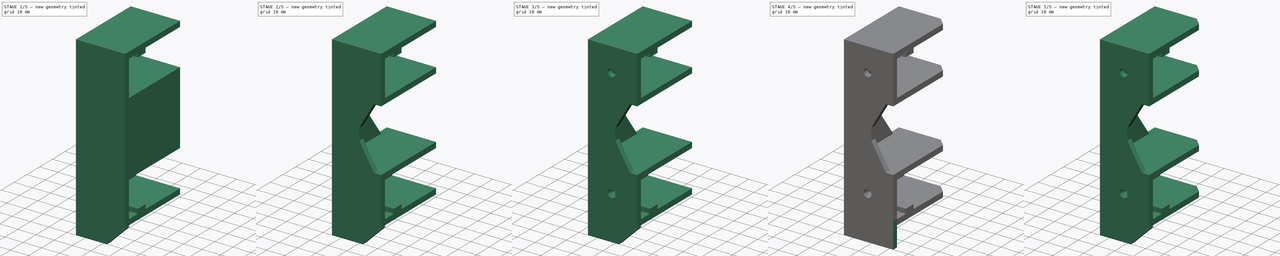
[diagram: build sequence overview — one tinted view per stage of 5, left to right]
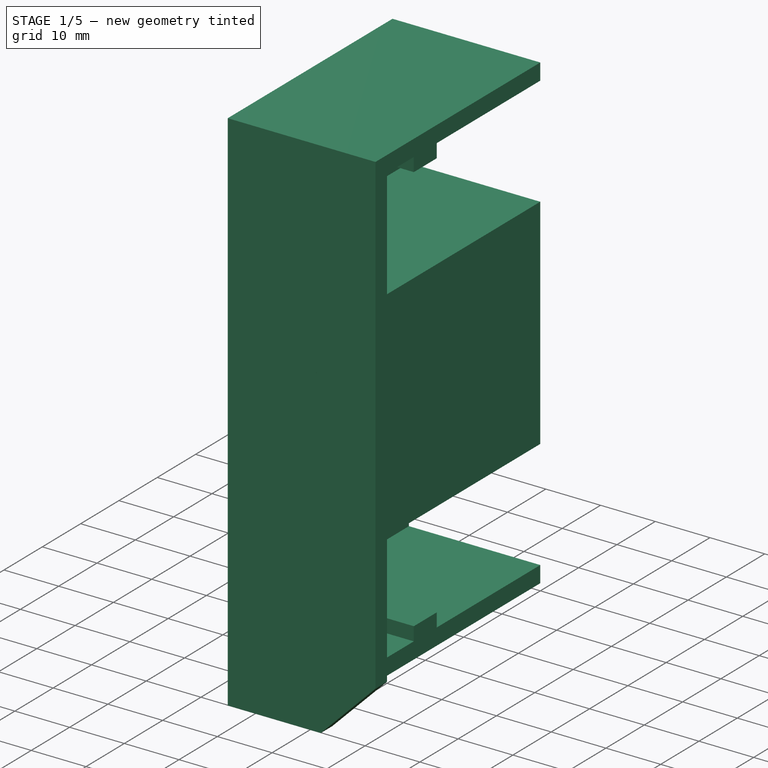
[diagram: stage 1 of 5 — iso view after this stage's code; geometry added in this stage tinted green]
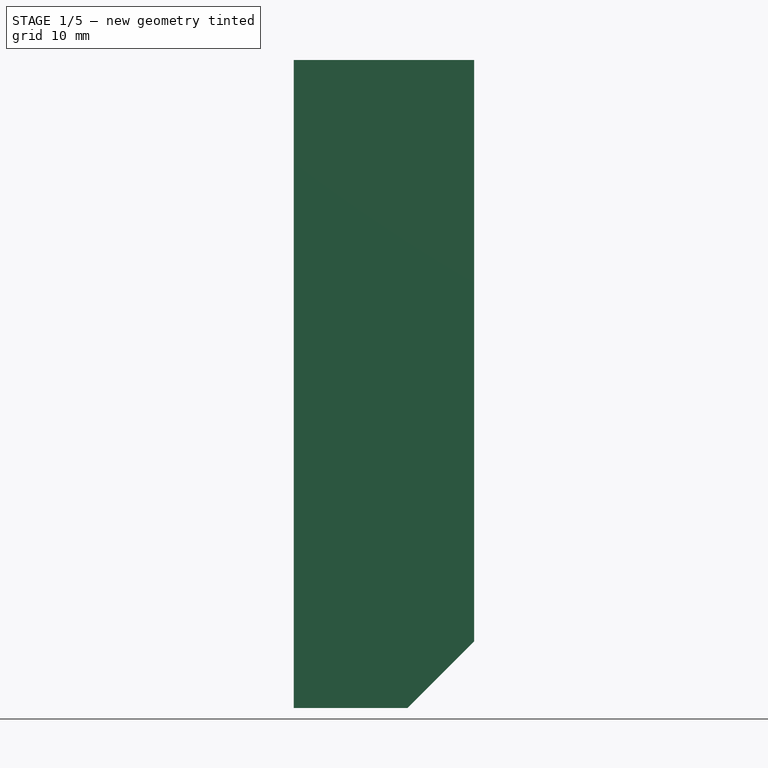
[diagram: stage 1 of 5 — front view after this stage's code; geometry added in this stage tinted green]
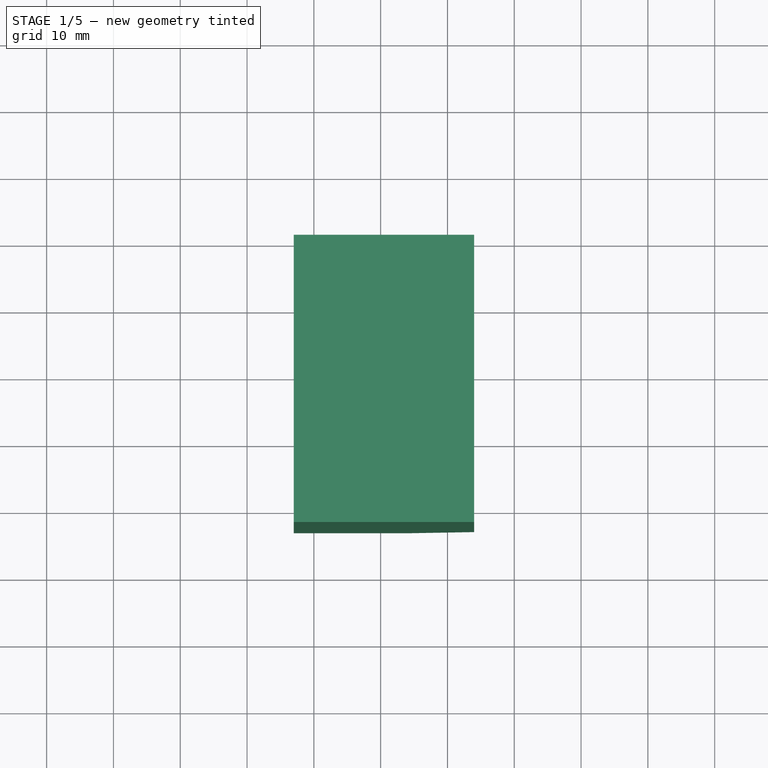
[diagram: stage 1 of 5 — top view after this stage's code; geometry added in this stage tinted green]
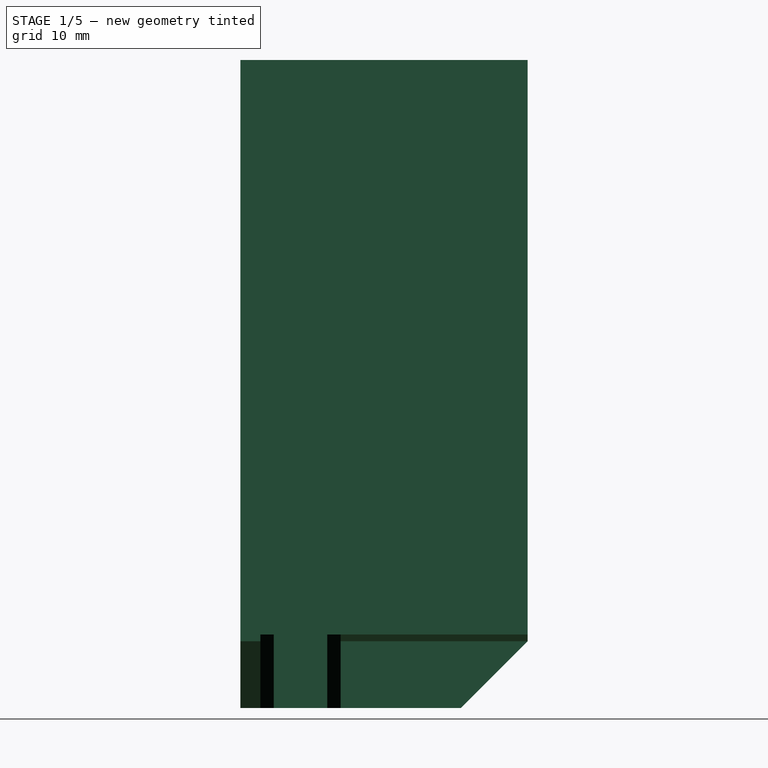
[diagram: stage 1 of 5 — right view after this stage's code; geometry added in this stage tinted green]
FCSTD DOCUMENT  (FreeCAD 0.14R3692 (Git))
Label: foot-rear-left
License: CC-BY 3.0
LicenseURL: http://creativecommons.org/licenses/by/3.0/
objects: Sketcher::SketchObject×9, Part::Feature×6, PartDesign::Pocket×5, Part::Chamfer×5, PartDesign::Pad×4, Part::Box×2, Part::Thickness×1, Part::MultiFuse×1, App::DocumentObjectGroup×1
note: 42 computed .brp shape members not serialized (recipe doc carries the construction recipe); baked Part::Feature solids carry a one-line shape summary decoded from their .brp

FEATURE [Part::Box] Box  label="body-cube"
  Height = 80
  Length = 24
  Width = 40
FEATURE [Part::Thickness] Thickness  label="body-thickness"
  Faces = -> Box [Face2,Face4]
  Intersection = false
  Join = 2
  Mode = 0
  SelfIntersection = false
  Value = 3
FEATURE [Sketcher::SketchObject] Sketch  label="body-sketch"
  Placement = pos=(0,0,0) rot=(0.57735,0.57735,0.57735;2.0944rad)
  Support = -> Thickness [Face1]
  sketch-geometry (4):
    g0: LineSegment StartX=40 StartY=60 StartZ=0 EndX=0 EndY=60 EndZ=0
    g1: LineSegment StartX=0 StartY=60 StartZ=0 EndX=0 EndY=20 EndZ=0
    g2: LineSegment StartX=0 StartY=20 StartZ=0 EndX=40 EndY=20 EndZ=0
    g3: LineSegment StartX=40 StartY=20 StartZ=0 EndX=40 EndY=60 EndZ=0
  constraints (12):
    c: Coincident(g0,g1)
    c: Coincident(g1,g2)
    c: Coincident(g2,g3)
    c: Coincident(g3,g0)
    c: Horizontal(g0)
    c: Horizontal(g2)
    c: Vertical(g1)
    c: Vertical(g3)
    c: PointOnObject(g1,g-2)
    c: DistanceX(g2) = 40
    c: DistanceY(g1) = -40
    c: DistanceY(g-1,g1) = 20
FEATURE [PartDesign::Pad] Pad  label="body-pad"
  Length = 24
  Length2 = 100
  Sketch = -> Sketch
  Type = 0
FEATURE [Part::Feature] Fusion001  label="body-foot-fusion-refined"
  shape: bbox 27 x 43 x 97 mm, 55 faces (baked)
FEATURE [Part::Chamfer] Chamfer004  label="body-foot-chamfer"
  Base = -> Fusion001
  Edges = 1 edges: [Edge16 r1=1 r2=4]
FEATURE [Part::Feature] Chamfer004001  label="foot-rear-left"
  shape: bbox 27 x 43 x 97 mm, 56 faces (baked)
FEATURE [Part::Feature] Part__Feature  label="extrusion-p20n6b-300-bottom-left"
  Placement = pos=(10,20,10) rot=(-1,0,0;1.5708rad)
  shape: bbox 20 x 300 x 20 mm, 154 faces (baked)
FEATURE [Part::Feature] Part__Feature001  label="extrusion-p20n6b-300-top-left"
  Placement = pos=(10,20,70) rot=(-1,0,0;1.5708rad)
  shape: bbox 20 x 300 x 20 mm, 154 faces (baked)
FEATURE [Part::Feature] Part__Feature002  label="extrusion-p20n6b-200-bottom-rear"
  Placement = pos=(0,10,10) rot=(0,1,0;1.5708rad)
  shape: bbox 200 x 20 x 20 mm, 154 faces (baked)
FEATURE [Part::Feature] Part__Feature003  label="extrusion-p20n6b-200-top-rear"
  Placement = pos=(0,10,70) rot=(0,1,0;1.5708rad)
  shape: bbox 200 x 20 x 20 mm, 154 faces (baked)
FEATURE [App::DocumentObjectGroup] Grupo  label="aux"
  Group = -> [Part__Feature,Part__Feature001,Part__Feature002,Part__Feature003]
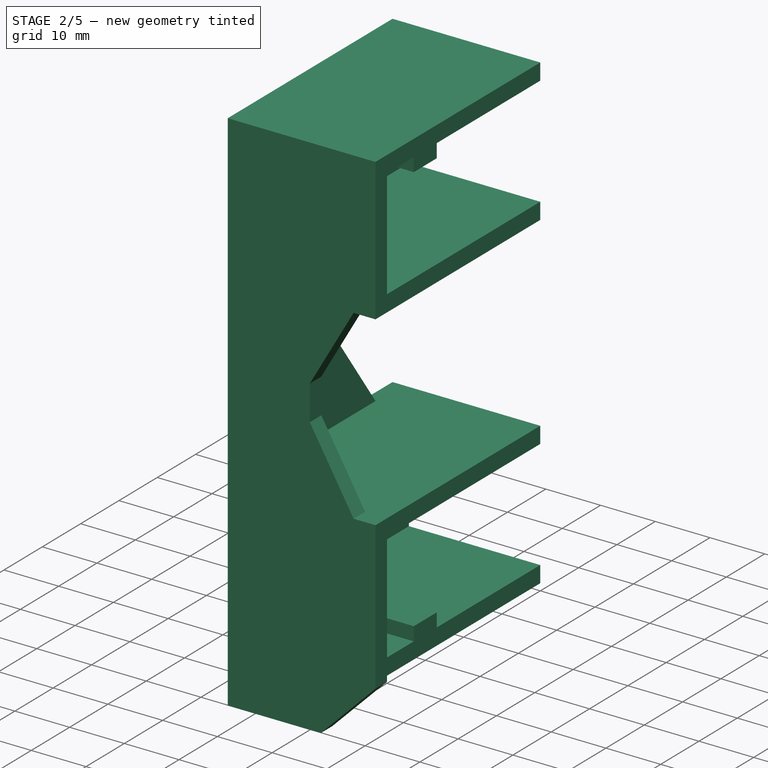
[diagram: stage 2 of 5 — iso view after this stage's code; geometry added in this stage tinted green]
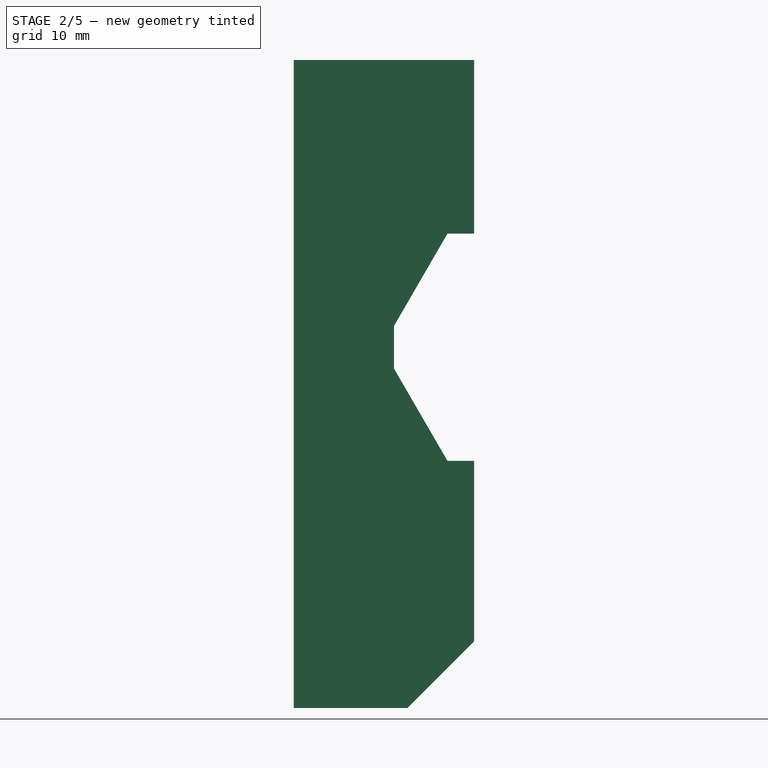
[diagram: stage 2 of 5 — front view after this stage's code; geometry added in this stage tinted green]
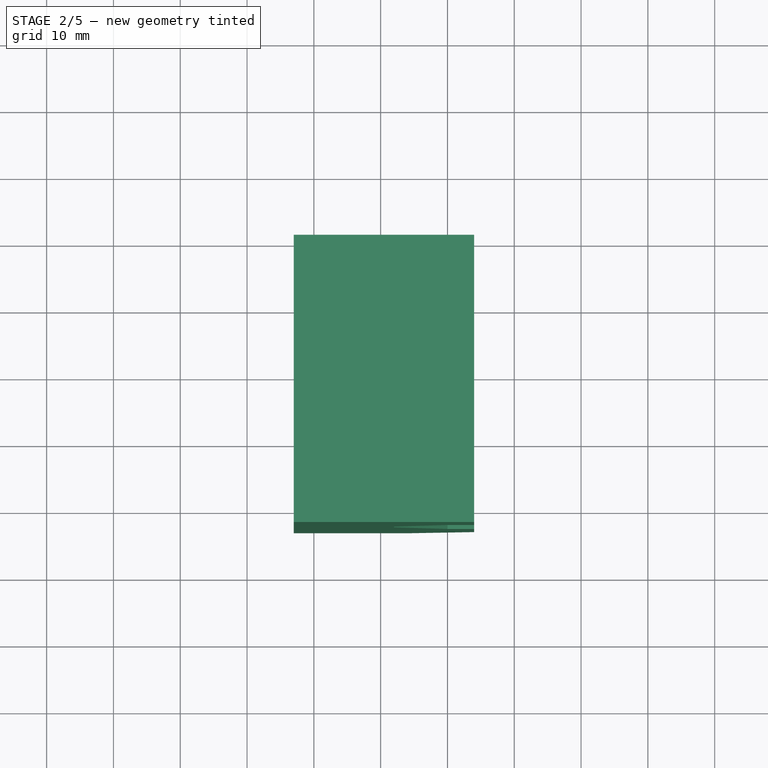
[diagram: stage 2 of 5 — top view after this stage's code; geometry added in this stage tinted green]
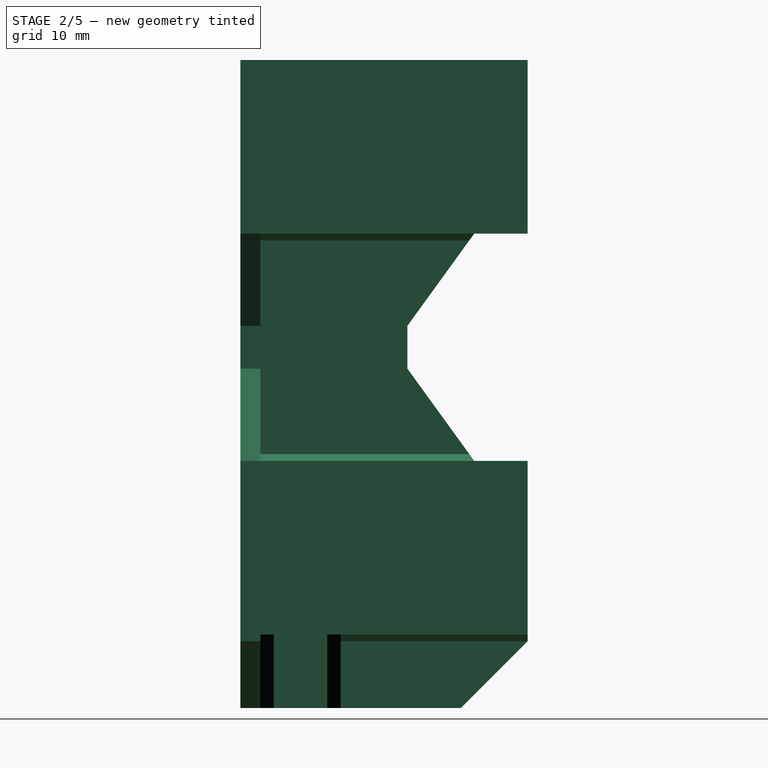
[diagram: stage 2 of 5 — right view after this stage's code; geometry added in this stage tinted green]
FEATURE [Sketcher::SketchObject] Sketch001  label="body-recess-sketch"
  Placement = pos=(24,0,0) rot=(0.57735,0.57735,0.57735;2.0944rad)
  Support = -> Pad [Face15]
  sketch-geometry (4):
    g0: LineSegment StartX=40 StartY=57 StartZ=0 EndX=0 EndY=57 EndZ=0
    g1: LineSegment StartX=0 StartY=57 StartZ=0 EndX=0 EndY=23 EndZ=0
    g2: LineSegment StartX=0 StartY=23 StartZ=0 EndX=40 EndY=23 EndZ=0
    g3: LineSegment StartX=40 StartY=23 StartZ=0 EndX=40 EndY=57 EndZ=0
  constraints (12):
    c: Coincident(g0,g1)
    c: Coincident(g1,g2)
    c: Coincident(g2,g3)
    c: Coincident(g3,g0)
    c: Horizontal(g0)
    c: Horizontal(g2)
    c: Vertical(g1)
    c: Vertical(g3)
    c: DistanceX(g2) = 40
    c: DistanceY(g1) = -34
    c: DistanceY(g-1,g1) = 23
    c: PointOnObject(g1,g-2)
FEATURE [PartDesign::Pocket] Pocket  label="body-recess-pocket"
  Length = 24
  Sketch = -> Sketch001
  Type = 0
FEATURE [Sketcher::SketchObject] Sketch005  label="body-rear-cutout-sketch"
  Placement = pos=(0,-3,0) rot=(1,0,0;1.5708rad)
  Support = -> Pocket [Face15]
  sketch-geometry (6):
    g0: LineSegment StartX=24 StartY=57 StartZ=0 EndX=20 EndY=57 EndZ=0
    g1: LineSegment StartX=20 StartY=57 StartZ=0 EndX=12 EndY=43.2 EndZ=0
    g2: LineSegment StartX=12 StartY=43.2 StartZ=0 EndX=12 EndY=36.8 EndZ=0
    g3: LineSegment StartX=12 StartY=36.8 StartZ=0 EndX=20 EndY=23 EndZ=0
    g4: LineSegment StartX=20 StartY=23 StartZ=0 EndX=24 EndY=23 EndZ=0
    g5: LineSegment StartX=24 StartY=23 StartZ=0 EndX=24 EndY=57 EndZ=0
  constraints (18):
    c: Coincident(g0,g1)
    c: Coincident(g1,g2)
    c: Coincident(g2,g3)
    c: Coincident(g3,g4)
    c: Coincident(g4,g5)
    c: Coincident(g5,g0)
    c: Vertical(g5)
    c: Vertical(g2)
    c: Horizontal(g0)
    c: Horizontal(g4)
    c: DistanceY(g2) = -6.4
    c: DistanceY(g-1,g4) = 23
    c: DistanceX(g-1,g4) = 24
    c: DistanceY(g5) = 34
    c: DistanceX(g4) = 4
    c: DistanceX(g0) = -4
    c: Equal(g1,g3)
    c: DistanceX(g-1,g2) = 12
FEATURE [PartDesign::Pocket] Pocket001  label="body-rear-cutout-pocket"
  Length = 3
  Sketch = -> Sketch005
  Type = 0
FEATURE [Sketcher::SketchObject] Sketch006  label="body-left-cutout-sketch"
  Placement = pos=(-3,0,0) rot=(0.57735,-0.57735,-0.57735;2.0944rad)
  Support = -> Pocket001 [Face12]
  sketch-geometry (6):
    g0: LineSegment StartX=-40 StartY=57 StartZ=0 EndX=-32 EndY=57 EndZ=0
    g1: LineSegment StartX=-32 StartY=57 StartZ=0 EndX=-22 EndY=43.2 EndZ=0
    g2: LineSegment StartX=-22 StartY=43.2 StartZ=0 EndX=-22 EndY=36.8 EndZ=0
    g3: LineSegment StartX=-22 StartY=36.8 StartZ=0 EndX=-32 EndY=23 EndZ=0
    g4: LineSegment StartX=-32 StartY=23 StartZ=0 EndX=-40 EndY=23 EndZ=0
    g5: LineSegment StartX=-40 StartY=23 StartZ=0 EndX=-40 EndY=57 EndZ=0
  constraints (18):
    c: Coincident(g0,g1)
    c: Coincident(g1,g2)
    c: Coincident(g2,g3)
    c: Coincident(g3,g4)
    c: Coincident(g4,g5)
    c: Coincident(g5,g0)
    c: Horizontal(g0)
    c: Horizontal(g4)
    c: Vertical(g2)
    c: Vertical(g5)
    c: DistanceX(g-1,g4) = -40
    c: DistanceY(g5) = 34
    c: DistanceX(g-1,g2) = -22
    c: Equal(g3,g1)
    c: DistanceY(g2) = -6.4
    c: DistanceY(g-1,g4) = 23
    c: DistanceX(g4) = -8
    c: DistanceX(g0) = 8
FEATURE [PartDesign::Pocket] Pocket002  label="body-left-cutout-pocket"
  Length = 3
  Sketch = -> Sketch006
  Type = 0
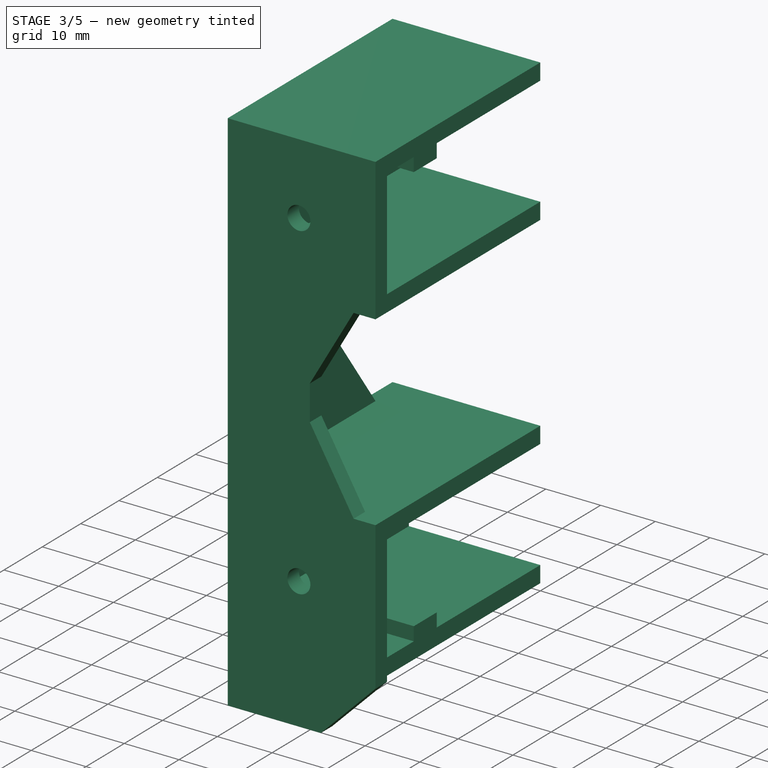
[diagram: stage 3 of 5 — iso view after this stage's code; geometry added in this stage tinted green]
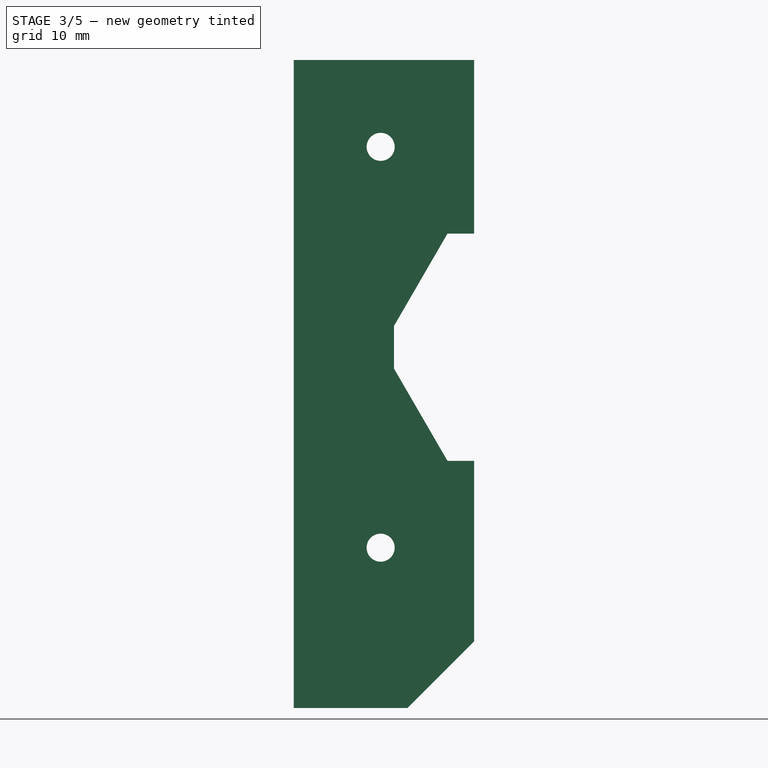
[diagram: stage 3 of 5 — front view after this stage's code; geometry added in this stage tinted green]
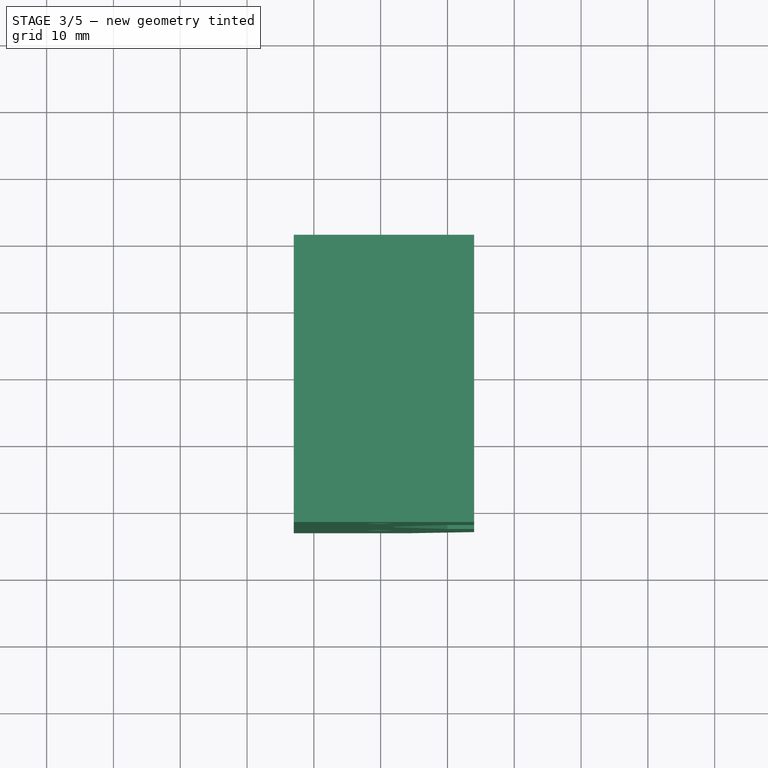
[diagram: stage 3 of 5 — top view after this stage's code; geometry added in this stage tinted green]
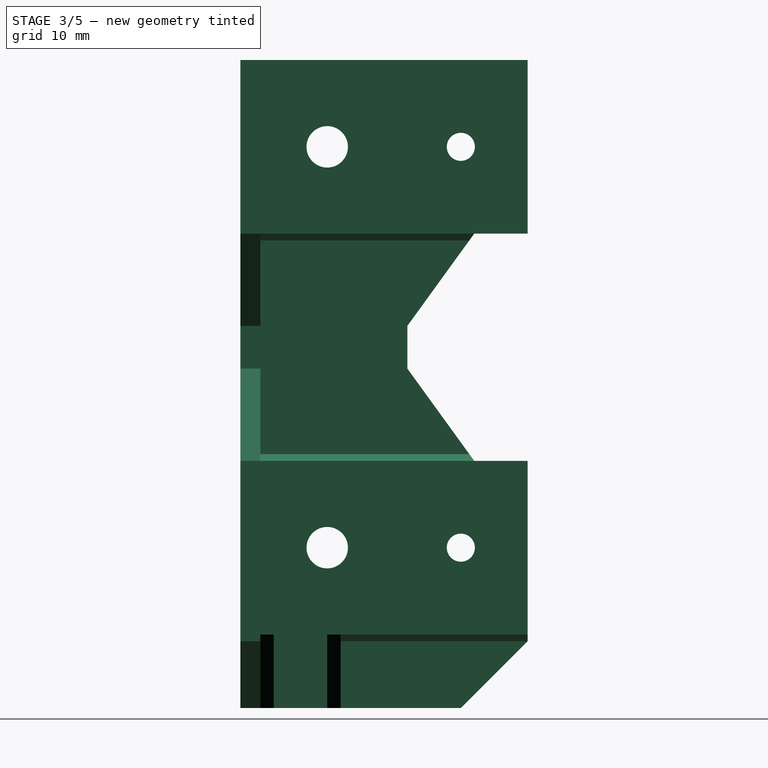
[diagram: stage 3 of 5 — right view after this stage's code; geometry added in this stage tinted green]
FEATURE [Sketcher::SketchObject] Sketch004  label="slot-rear-guides-sketch"
  Placement = pos=(0,0,0) rot=(0.57735,0.57735,0.57735;2.0944rad)
  Support = -> Pocket002 [Face2]
  sketch-geometry (8):
    g0: LineSegment StartX=7 StartY=2.5 StartZ=0 EndX=13 EndY=2.5 EndZ=0
    g1: LineSegment StartX=13 StartY=2.5 StartZ=0 EndX=13 EndY=0 EndZ=0
    g2: LineSegment StartX=13 StartY=0 StartZ=0 EndX=7 EndY=0 EndZ=0
    g3: LineSegment StartX=7 StartY=0 StartZ=0 EndX=7 EndY=2.5 EndZ=0
    g4: LineSegment StartX=7 StartY=80 StartZ=0 EndX=13 EndY=80 EndZ=0
    g5: LineSegment StartX=13 StartY=80 StartZ=0 EndX=13 EndY=77.5 EndZ=0
    g6: LineSegment StartX=13 StartY=77.5 StartZ=0 EndX=7 EndY=77.5 EndZ=0
    g7: LineSegment StartX=7 StartY=77.5 StartZ=0 EndX=7 EndY=80 EndZ=0
  constraints (24):
    c: Coincident(g0,g1)
    c: Coincident(g1,g2)
    c: Coincident(g2,g3)
    c: Coincident(g3,g0)
    c: Horizontal(g0)
    c: Horizontal(g2)
    c: Vertical(g1)
    c: Vertical(g3)
    c: Coincident(g4,g5)
    c: Coincident(g5,g6)
    c: Coincident(g6,g7)
    c: Coincident(g7,g4)
    c: Horizontal(g4)
    c: Horizontal(g6)
    c: Vertical(g5)
    c: Vertical(g7)
    c: DistanceX(g0) = 6
    c: DistanceY(g1) = -2.5
    c: DistanceX(g6) = -6
    c: DistanceY(g5) = -2.5
    c: PointOnObject(g2,g-1)
    c: DistanceX(g-1,g2) = 7
    c: DistanceX(g-1,g4) = 7
    c: DistanceY(g-1,g4) = 80
FEATURE [PartDesign::Pad] Pad003  label="slot-rear-guides-pad"
  Length = 24
  Length2 = 100
  Sketch = -> Sketch004
  Type = 0
FEATURE [Sketcher::SketchObject] Sketch007  label="slot-rear-screw-holes-sketch"
  Placement = pos=(0,-3,0) rot=(1,0,0;1.5708rad)
  Support = -> Pad003 [Face15]
  sketch-geometry (2):
    g0: Circle CenterX=10 CenterY=10 CenterZ=0 NormalX=0 NormalY=0 NormalZ=1 Radius=2.1
    g1: Circle CenterX=10 CenterY=70 CenterZ=0 NormalX=0 NormalY=0 NormalZ=1 Radius=2.1
  constraints (6):
    c: Radius(g0) = 2.1
    c: Equal(g0,g1)
    c: DistanceX(g-1,g0) = 10
    c: DistanceY(g-1,g0) = 10
    c: DistanceX(g-1,g1) = 10
    c: DistanceY(g-1,g1) = 70
FEATURE [PartDesign::Pocket] Pocket003  label="slot-rear-screw-holes-pocket"
  Length = 3
  Sketch = -> Sketch007
  Type = 0
FEATURE [Sketcher::SketchObject] Sketch008  label="slot-left-screw-holes-sketch"
  Placement = pos=(-3,0,0) rot=(0.57735,-0.57735,-0.57735;2.0944rad)
  Support = -> Pocket003 [Face3]
  sketch-geometry (4):
    g0: Circle CenterX=-30 CenterY=10 CenterZ=0 NormalX=0 NormalY=0 NormalZ=1 Radius=2.1
    g1: Circle CenterX=-30 CenterY=70 CenterZ=0 NormalX=0 NormalY=0 NormalZ=1 Radius=2.1
    g2: Circle CenterX=-10 CenterY=10 CenterZ=0 NormalX=0 NormalY=0 NormalZ=1 Radius=3.1
    g3: Circle CenterX=-10 CenterY=70 CenterZ=0 NormalX=0 NormalY=0 NormalZ=1 Radius=3.1
  constraints (12):
    c: Radius(g0) = 2.1
    c: Equal(g0,g1)
    c: DistanceY(g-1,g0) = 10
    c: DistanceX(g-1,g0) = -30
    c: DistanceY(g-1,g1) = 70
    c: DistanceX(g-1,g1) = -30
    c: Radius(g2) = 3.1
    c: Equal(g2,g3)
    c: DistanceY(g-1,g2) = 10
    c: DistanceX(g-1,g2) = -10
    c: DistanceY(g-1,g3) = 70
    c: DistanceX(g-1,g3) = -10
FEATURE [PartDesign::Pocket] Pocket004  label="slot-left-screw-holes-pocket"
  Length = 3
  Sketch = -> Sketch008
  Type = 0
FEATURE [Part::Chamfer] Chamfer002  label="body-recess-reinforced-chamfer"
  Base = -> Pocket004
  Edges = 2 edges: [Edge50 r1=4 r2=1,Edge89 r1=1 r2=4]
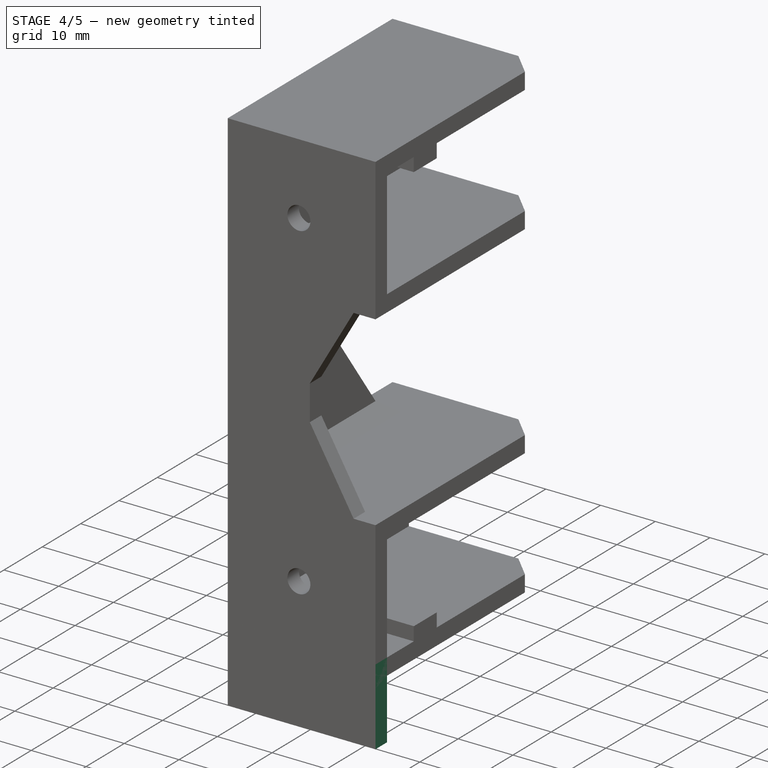
[diagram: stage 4 of 5 — iso view after this stage's code; geometry added in this stage tinted green]
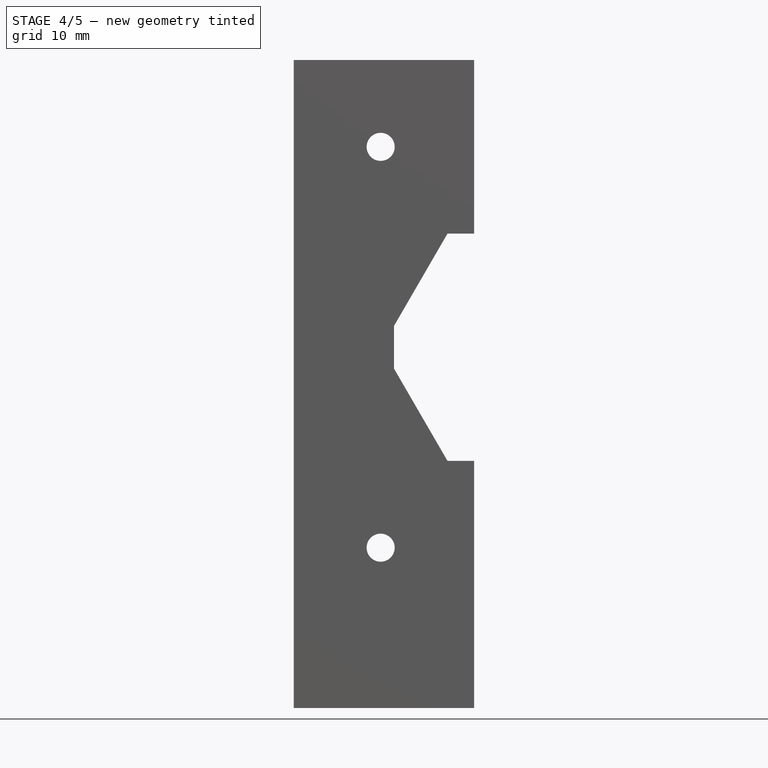
[diagram: stage 4 of 5 — front view after this stage's code; geometry added in this stage tinted green]
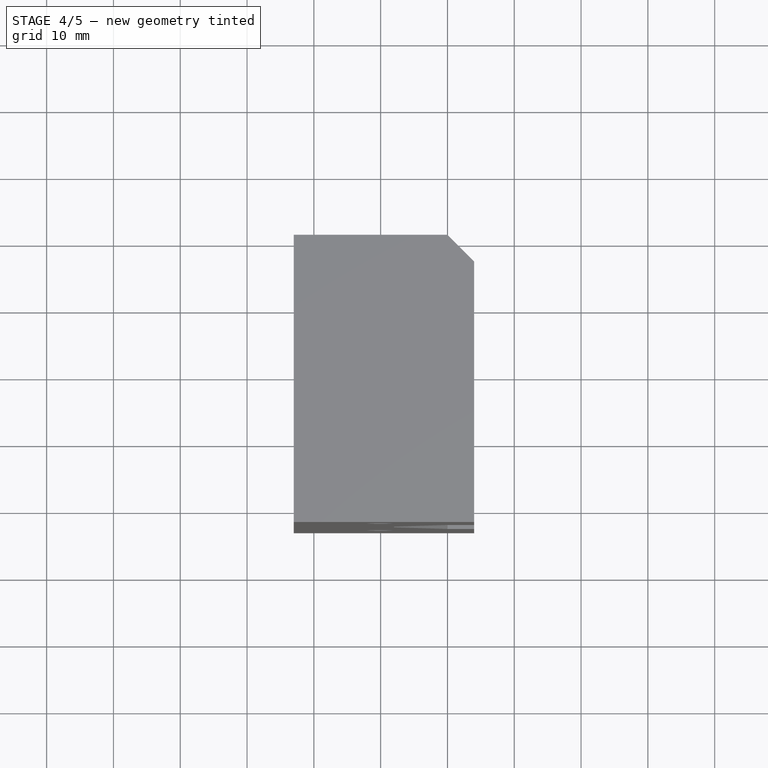
[diagram: stage 4 of 5 — top view after this stage's code; geometry added in this stage tinted green]
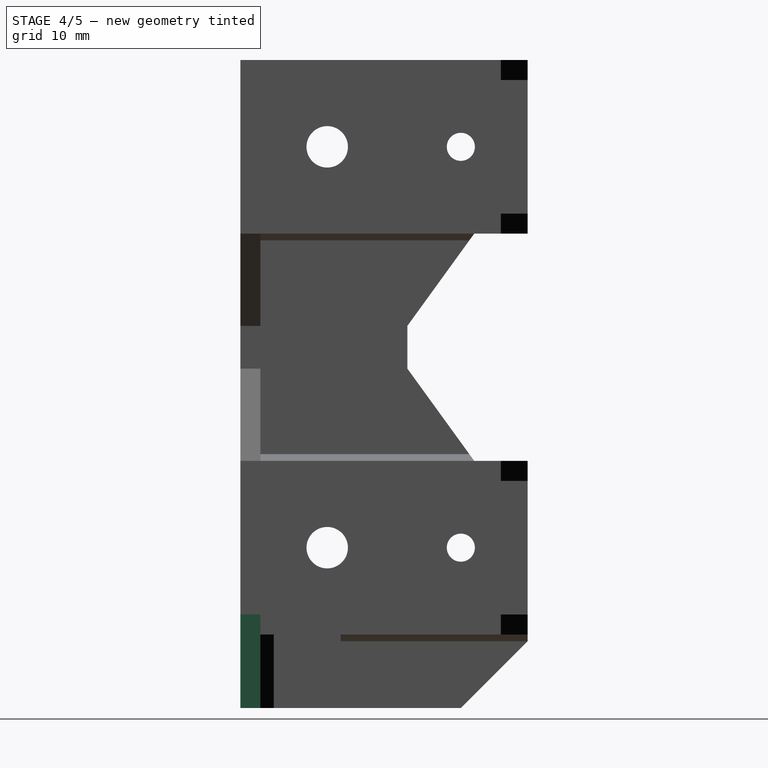
[diagram: stage 4 of 5 — right view after this stage's code; geometry added in this stage tinted green]
FEATURE [Part::Box] Box001  label="foot-cube"
  Height = 14
  Length = 15
  Placement = pos=(-3,-3,-14) rot=(0,0,1;0rad)
  Width = 15
FEATURE [Sketcher::SketchObject] Sketch002  label="foot-rear-fin-sketch"
  Placement = pos=(12,-3,-14) rot=(0.57735,0.57735,0.57735;2.0944rad)
  Support = -> Box001 [Face2]
  sketch-geometry (4):
    g0: LineSegment StartX=0 StartY=14 StartZ=0 EndX=3 EndY=14 EndZ=0
    g1: LineSegment StartX=3 StartY=14 StartZ=0 EndX=3 EndY=0 EndZ=0
    g2: LineSegment StartX=3 StartY=0 StartZ=0 EndX=0 EndY=0 EndZ=0
    g3: LineSegment StartX=0 StartY=0 StartZ=0 EndX=0 EndY=14 EndZ=0
  constraints (11):
    c: Coincident(g0,g1)
    c: Coincident(g1,g2)
    c: Coincident(g2,g3)
    c: Coincident(g3,g0)
    c: Horizontal(g0)
    c: Horizontal(g2)
    c: Vertical(g1)
    c: Vertical(g3)
    c: Coincident(g2,g-1)
    c: DistanceX(g2) = -3
    c: DistanceY(g3) = 14
FEATURE [PartDesign::Pad] Pad001  label="foot-rear-fin-pad"
  Length = 12
  Length2 = 100
  Placement = pos=(-3,-3,-14) rot=(0,0,1;0rad)
  Sketch = -> Sketch002
  Type = 0
FEATURE [Part::Chamfer] Chamfer003  label="slot-left-chamfer"
  Base = -> Chamfer002
  Edges = 4 edges r=4: [Edge47,Edge51,Edge71,Edge101]
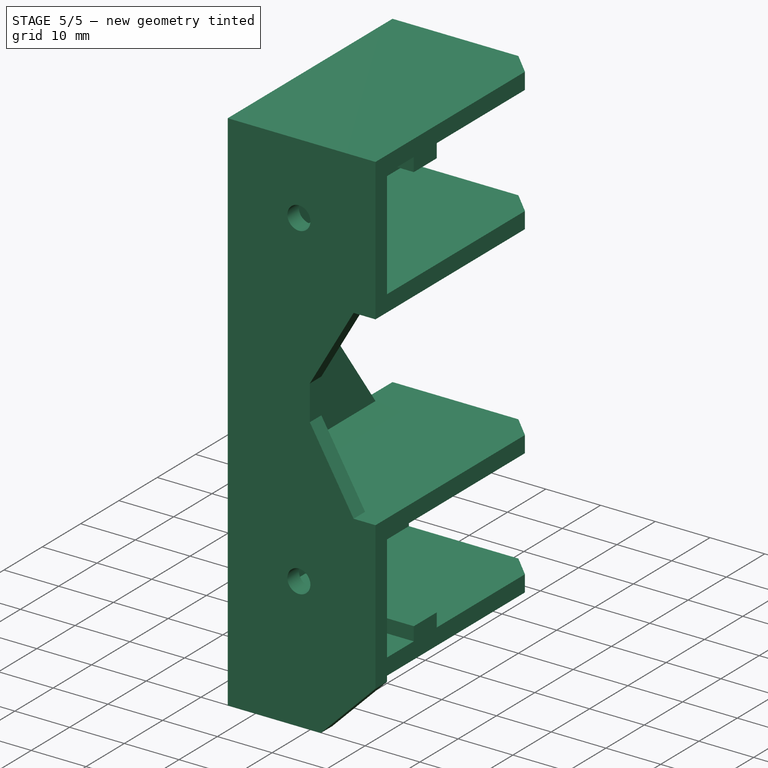
[diagram: stage 5 of 5 — iso view after this stage's code; geometry added in this stage tinted green]
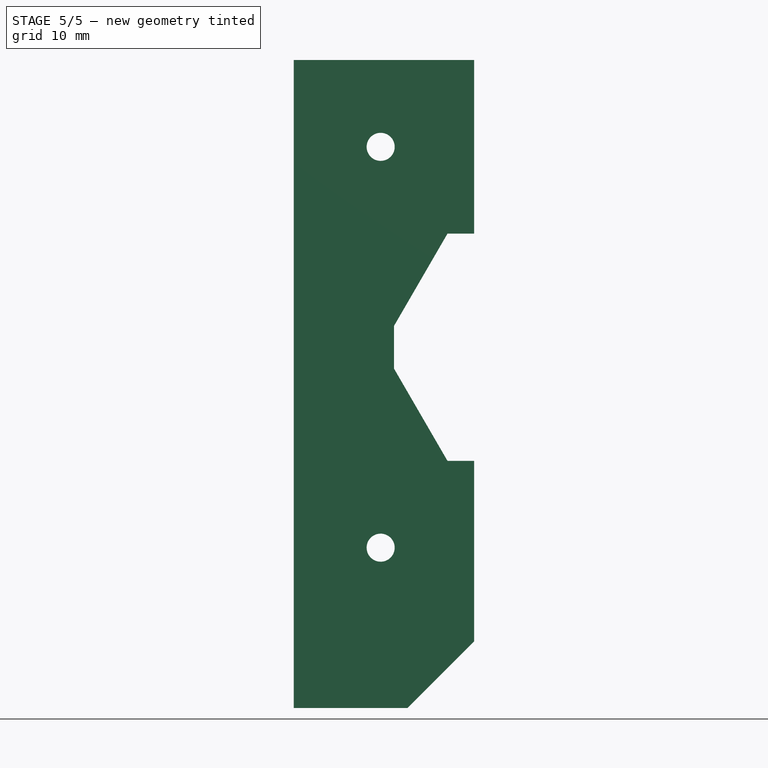
[diagram: stage 5 of 5 — front view after this stage's code; geometry added in this stage tinted green]
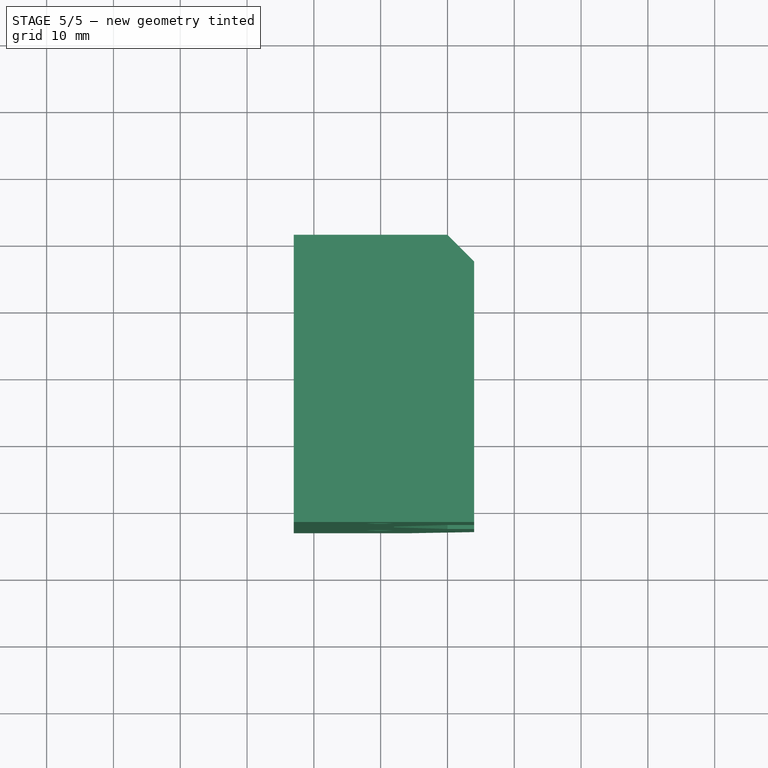
[diagram: stage 5 of 5 — top view after this stage's code; geometry added in this stage tinted green]
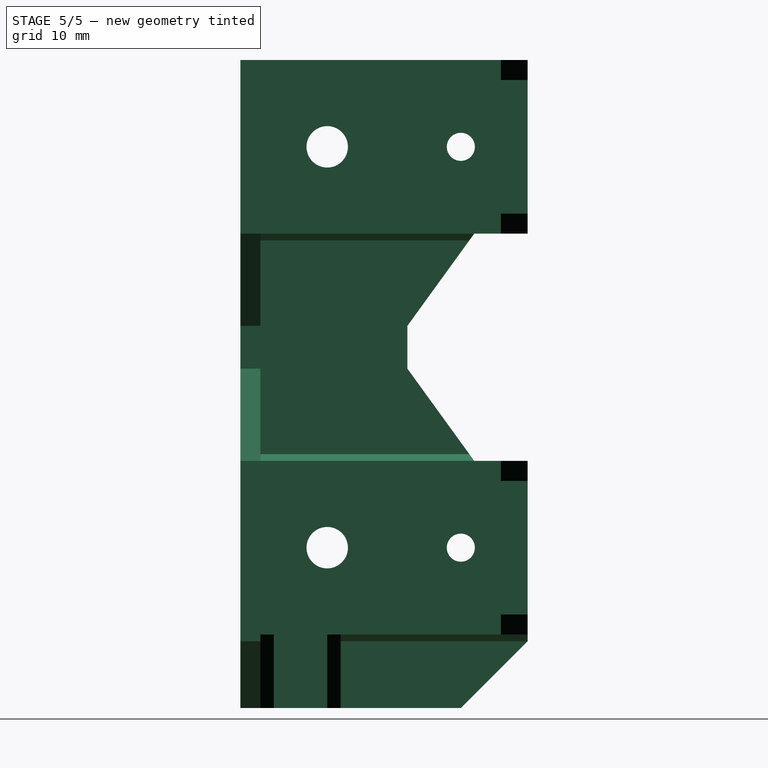
[diagram: stage 5 of 5 — right view after this stage's code; geometry added in this stage tinted green]
FEATURE [Sketcher::SketchObject] Sketch003  label="foot-left-fin-sketch"
  Placement = pos=(-3,12,-14) rot=(0,0.707107,0.707107;3.14159rad)
  Support = -> Pad001 [Face4]
  sketch-geometry (4):
    g0: LineSegment StartX=-3 StartY=14 StartZ=0 EndX=0 EndY=14 EndZ=0
    g1: LineSegment StartX=0 StartY=14 StartZ=0 EndX=0 EndY=0 EndZ=0
    g2: LineSegment StartX=0 StartY=0 StartZ=0 EndX=-3 EndY=0 EndZ=0
    g3: LineSegment StartX=-3 StartY=0 StartZ=0 EndX=-3 EndY=14 EndZ=0
  constraints (11):
    c: Coincident(g0,g1)
    c: Coincident(g1,g2)
    c: Coincident(g2,g3)
    c: Coincident(g3,g0)
    c: Horizontal(g0)
    c: Horizontal(g2)
    c: Vertical(g1)
    c: Vertical(g3)
    c: Coincident(g1,g-1)
    c: DistanceY(g1) = -14
    c: DistanceX(g2) = -3
FEATURE [PartDesign::Pad] Pad002  label="foot-left-fin-pad"
  Length = 28
  Length2 = 100
  Placement = pos=(-3,-3,-14) rot=(0,0,1;0rad)
  Sketch = -> Sketch003
  Type = 0
FEATURE [Part::Chamfer] Chamfer  label="foot-chamfer"
  Base = -> Pad002
  Edges = 2 edges r=2: [Edge24,Edge26]
FEATURE [Part::Chamfer] Chamfer001  label="foot-fin-chamfer"
  Base = -> Chamfer
  Edges = 2 edges r=10: [Edge15,Edge24]
FEATURE [Part::MultiFuse] Fusion  label="body-foot-fusion"
  Shapes = -> [Chamfer001,Chamfer003]
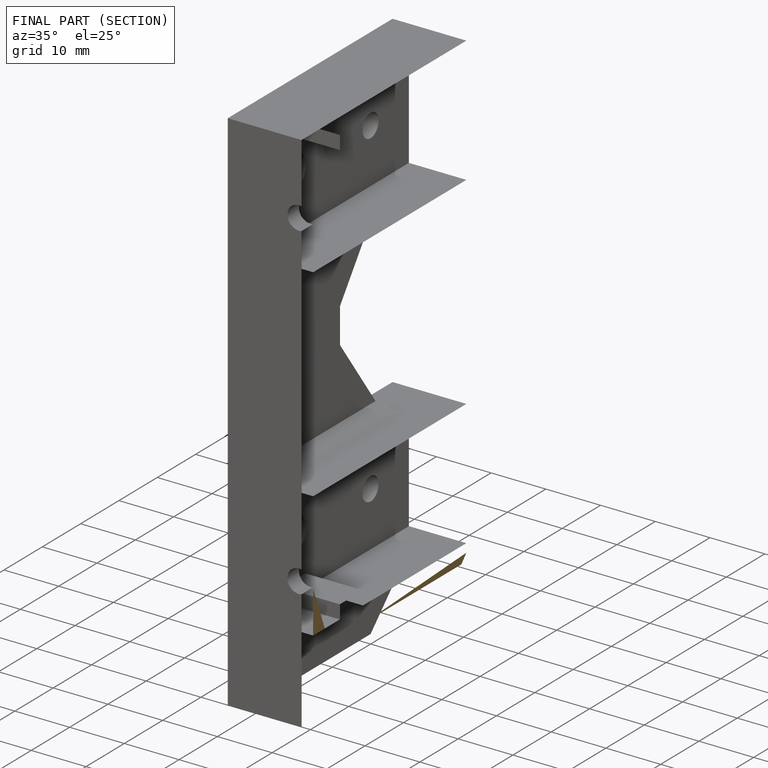
[diagram: finished part — half-section view (interior)]
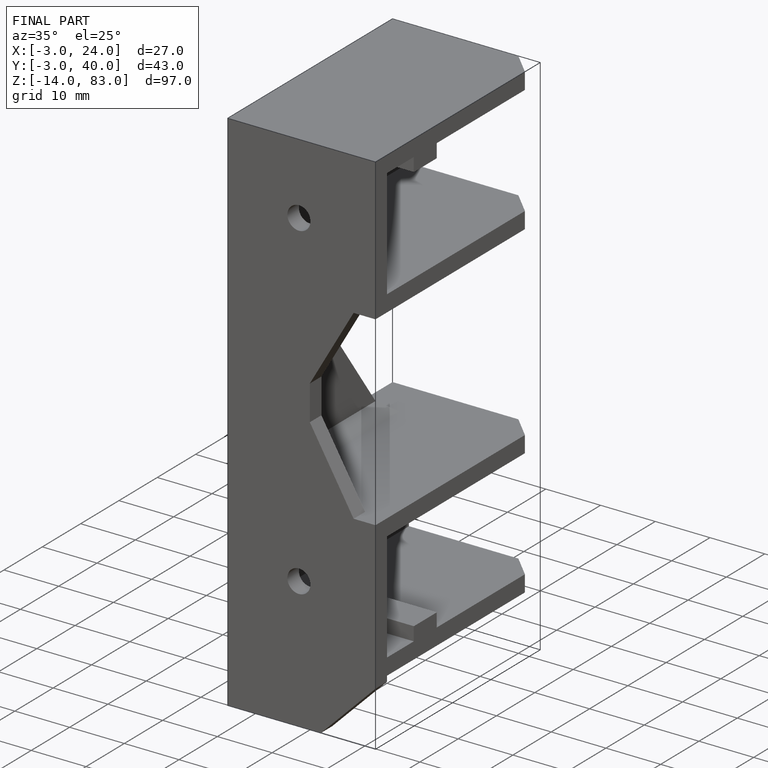
[diagram: finished part — iso view with bounding-box wireframe]
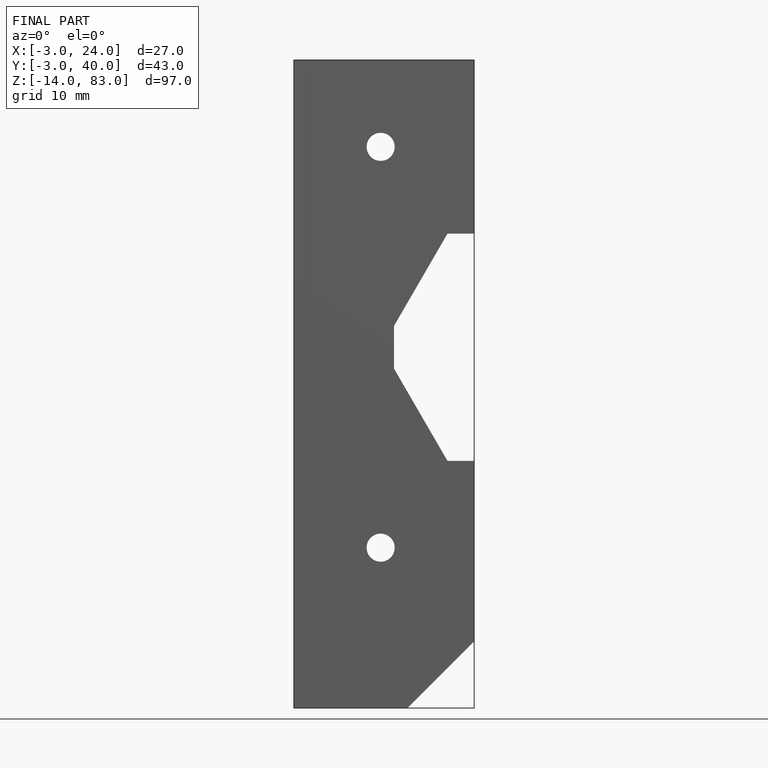
[diagram: finished part — front view with bounding-box wireframe]
